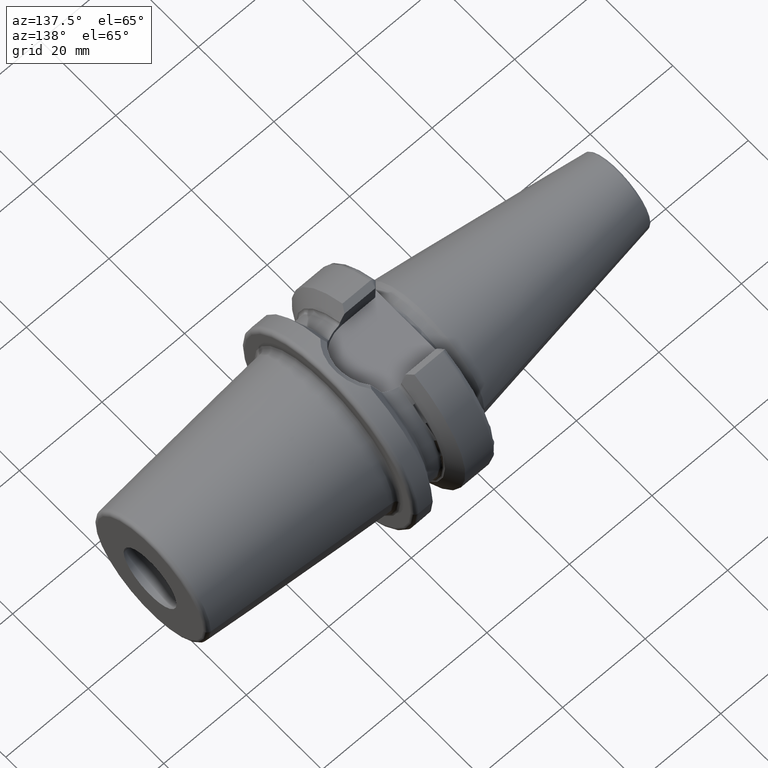
[diagram: clean part render]
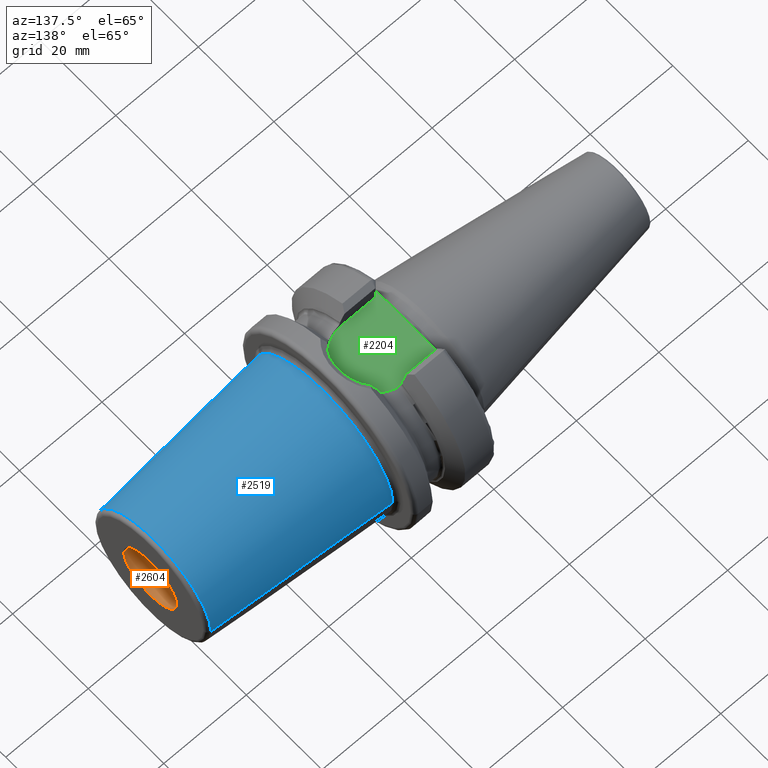
[diagram: same view with three faces highlighted in distinct colors, each labeled with its STEP entity id]
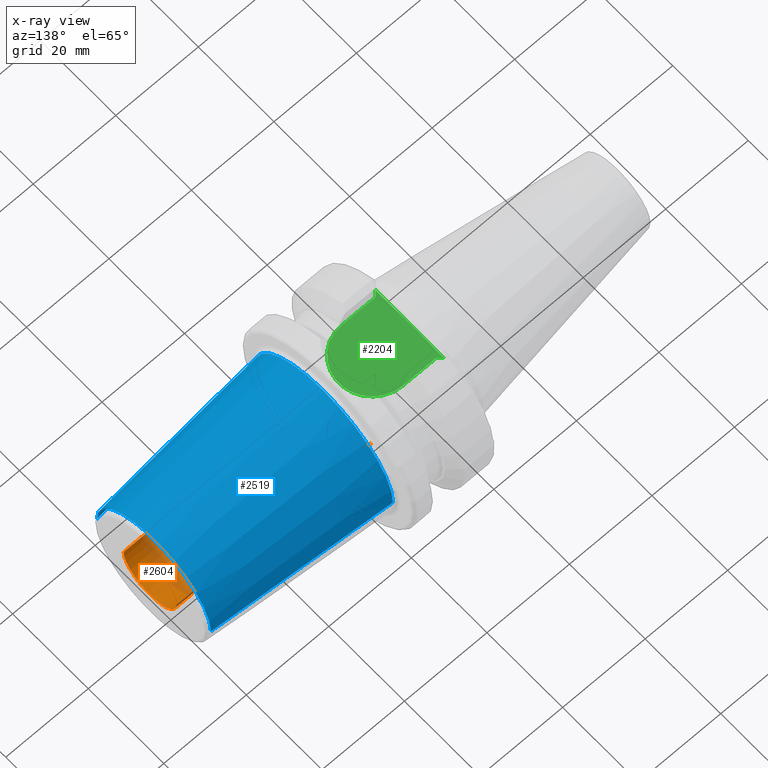
[diagram: x-ray of the same camera — body ghosted, the three highlighted faces saturated]
A machine part, auxiliary view with three faces highlighted in distinct colors.
The next image is the same camera in x-ray (body ghosted, the three faces saturated) — at least one of them is partly hidden behind the body in this view.
Their STEP definitions:

[orange] entity #2604 — the highlighted cylindrical surface (partial cylindrical patch) has radius 7 mm, axis along (-1, 0, 0).
#885=CARTESIAN_POINT('',(6.5E1,0.E0,0.E0));
#886=DIRECTION('',(-1.E0,0.E0,0.E0));
#887=DIRECTION('',(0.E0,1.E0,0.E0));
#888=AXIS2_PLACEMENT_3D('',#885,#886,#887);
#900=DIRECTION('',(-1.E0,0.E0,0.E0));
#901=VECTOR('',#900,4.7E1);
#902=CARTESIAN_POINT('',(6.5E1,-7.E0,0.E0));
#903=LINE('',#902,#901);
#904=DIRECTION('',(-1.E0,0.E0,0.E0));
#905=VECTOR('',#904,4.7E1);
#906=CARTESIAN_POINT('',(6.5E1,7.E0,0.E0));
#907=LINE('',#906,#905);
#913=CARTESIAN_POINT('',(1.8E1,0.E0,0.E0));
#914=DIRECTION('',(-1.E0,0.E0,0.E0));
#915=DIRECTION('',(0.E0,1.E0,0.E0));
#916=AXIS2_PLACEMENT_3D('',#913,#914,#915);
#1357=CARTESIAN_POINT('',(1.8E1,-7.E0,0.E0));
#1358=CARTESIAN_POINT('',(1.8E1,7.E0,0.E0));
#1359=VERTEX_POINT('',#1357);
#1360=VERTEX_POINT('',#1358);
#1361=CARTESIAN_POINT('',(6.5E1,-7.E0,0.E0));
#1362=CARTESIAN_POINT('',(6.5E1,7.E0,0.E0));
#1363=VERTEX_POINT('',#1361);
#1364=VERTEX_POINT('',#1362);
#2592=CARTESIAN_POINT('',(6.5E1,0.E0,0.E0));
#2593=DIRECTION('',(-1.E0,0.E0,0.E0));
#2594=DIRECTION('',(0.E0,-1.E0,0.E0));
#2595=AXIS2_PLACEMENT_3D('',#2592,#2593,#2594);
#2596=CYLINDRICAL_SURFACE('',#2595,7.E0);
#2597=ORIENTED_EDGE('',*,*,#2572,.T.);
#2598=ORIENTED_EDGE('',*,*,#2587,.T.);
#2600=ORIENTED_EDGE('',*,*,#2599,.F.);
#2601=ORIENTED_EDGE('',*,*,#2583,.F.);
#2602=EDGE_LOOP('',(#2597,#2598,#2600,#2601));
#2603=FACE_OUTER_BOUND('',#2602,.F.);
#2604=ADVANCED_FACE('',(#2603),#2596,.F.);
#889=CIRCLE('',#888,7.E0);
#917=CIRCLE('',#916,7.E0);
#2572=EDGE_CURVE('',#1364,#1363,#889,.T.);
#2583=EDGE_CURVE('',#1364,#1360,#907,.T.);
#2587=EDGE_CURVE('',#1363,#1359,#903,.T.);
#2599=EDGE_CURVE('',#1360,#1359,#917,.T.);

[blue] entity #2519 — the highlighted conical surface has half-angle 4.5 deg.
#842=CARTESIAN_POINT('',(6.407845909573E1,0.E0,0.E0));
#843=DIRECTION('',(-1.E0,0.E0,0.E0));
#844=DIRECTION('',(0.E0,-1.E0,0.E0));
#845=AXIS2_PLACEMENT_3D('',#842,#843,#844);
#847=CARTESIAN_POINT('',(2.292154090427E1,0.E0,0.E0));
#848=DIRECTION('',(1.E0,0.E0,0.E0));
#849=DIRECTION('',(0.E0,1.E0,0.E0));
#850=AXIS2_PLACEMENT_3D('',#847,#848,#849);
#867=DIRECTION('',(-9.969173337331E-1,7.845909572785E-2,8.642914696715E-14));
#868=VECTOR('',#867,4.128418355145E1);
#869=CARTESIAN_POINT('',(6.407845909573E1,1.507252684207E1,
-5.666647174642E-13));
#870=LINE('',#869,#868);
#876=DIRECTION('',(-9.969173337331E-1,-7.845909572785E-2,-8.648229572930E-14));
#877=VECTOR('',#876,4.128418355145E1);
#878=CARTESIAN_POINT('',(6.407845909573E1,-1.507252684207E1,
5.662165253099E-13));
#879=LINE('',#878,#877);
#1365=CARTESIAN_POINT('',(6.407845909573E1,1.507252684207E1,0.E0));
#1366=CARTESIAN_POINT('',(6.407845909573E1,-1.507252684207E1,0.E0));
#1367=VERTEX_POINT('',#1365);
#1368=VERTEX_POINT('',#1366);
#1377=CARTESIAN_POINT('',(2.292154090427E1,-1.831164655138E1,0.E0));
#1378=CARTESIAN_POINT('',(2.292154090427E1,1.831164655138E1,0.E0));
#1379=VERTEX_POINT('',#1377);
#1380=VERTEX_POINT('',#1378);
#2505=CARTESIAN_POINT('',(4.35E1,0.E0,0.E0));
#2506=DIRECTION('',(-1.E0,0.E0,0.E0));
#2507=DIRECTION('',(0.E0,1.E0,0.E0));
#2508=AXIS2_PLACEMENT_3D('',#2505,#2506,#2507);
#2509=CONICAL_SURFACE('',#2508,1.669208669673E1,4.5E0);
#2511=ORIENTED_EDGE('',*,*,#2510,.F.);
#2513=ORIENTED_EDGE('',*,*,#2512,.T.);
#2514=ORIENTED_EDGE('',*,*,#2499,.F.);
#2516=ORIENTED_EDGE('',*,*,#2515,.F.);
#2517=EDGE_LOOP('',(#2511,#2513,#2514,#2516));
#2518=FACE_OUTER_BOUND('',#2517,.F.);
#2519=ADVANCED_FACE('',(#2518),#2509,.T.);
#846=CIRCLE('',#845,1.507252684207E1);
#851=CIRCLE('',#850,1.831164655138E1);
#2499=EDGE_CURVE('',#1380,#1379,#851,.T.);
#2510=EDGE_CURVE('',#1368,#1367,#846,.T.);
#2512=EDGE_CURVE('',#1368,#1379,#879,.T.);
#2515=EDGE_CURVE('',#1367,#1380,#870,.T.);

[green] entity #2204 — the highlighted planar face has unit normal (0, 0, 1).
#666=DIRECTION('',(1.E0,0.E0,0.E0));
#667=VECTOR('',#666,8.155E0);
#668=CARTESIAN_POINT('',(3.E0,-8.095E0,1.615E1));
#669=LINE('',#668,#667);
#670=DIRECTION('',(0.E0,1.E0,0.E0));
#671=VECTOR('',#670,6.389796680469E0);
#672=CARTESIAN_POINT('',(2.E0,-9.095E0,1.615E1));
#673=LINE('',#672,#671);
#674=DIRECTION('',(0.E0,1.E0,0.E0));
#675=VECTOR('',#674,6.389796680469E0);
#676=CARTESIAN_POINT('',(2.E0,2.705203319531E0,1.615E1));
#677=LINE('',#676,#675);
#678=DIRECTION('',(-1.E0,0.E0,0.E0));
#679=VECTOR('',#678,8.155E0);
#680=CARTESIAN_POINT('',(1.1155E1,8.095E0,1.615E1));
#681=LINE('',#680,#679);
#682=CARTESIAN_POINT('',(1.1155E1,0.E0,1.615E1));
#683=DIRECTION('',(0.E0,0.E0,1.E0));
#684=DIRECTION('',(0.E0,-1.E0,0.E0));
#685=AXIS2_PLACEMENT_3D('',#682,#683,#684);
#691=DIRECTION('',(7.071067811865E-1,7.071067811865E-1,0.E0));
#692=VECTOR('',#691,1.414213562373E0);
#693=CARTESIAN_POINT('',(2.E0,-9.095E0,1.615E1));
#694=LINE('',#693,#692);
#700=CARTESIAN_POINT('',(2.E0,-2.705203319531E0,1.615E1));
#701=CARTESIAN_POINT('',(2.E0,-2.447526606637E0,1.615E1));
#702=CARTESIAN_POINT('',(1.994666808080E0,-1.932209003238E0,1.615E1));
#703=CARTESIAN_POINT('',(1.982373677751E0,-1.159353659083E0,1.615E1));
#704=CARTESIAN_POINT('',(1.974023153496E0,-3.864772813160E-1,1.615E1));
#705=CARTESIAN_POINT('',(1.974022947076E0,3.864455623798E-1,1.615E1));
#706=CARTESIAN_POINT('',(1.982373315251E0,1.159330607264E0,1.615E1));
#707=CARTESIAN_POINT('',(1.994666672292E0,1.932198796230E0,1.615E1));
#708=CARTESIAN_POINT('',(2.E0,2.447523240700E0,1.615E1));
#709=CARTESIAN_POINT('',(2.E0,2.705203319531E0,1.615E1));
#716=DIRECTION('',(-7.071067811865E-1,7.071067811865E-1,0.E0));
#717=VECTOR('',#716,1.414213562373E0);
#718=CARTESIAN_POINT('',(3.E0,8.095E0,1.615E1));
#719=LINE('',#718,#717);
#1276=CARTESIAN_POINT('',(1.1155E1,-8.095E0,1.615E1));
#1277=CARTESIAN_POINT('',(1.1155E1,8.095E0,1.615E1));
#1278=VERTEX_POINT('',#1276);
#1279=VERTEX_POINT('',#1277);
#1280=CARTESIAN_POINT('',(2.E0,2.705203319531E0,1.615E1));
#1281=VERTEX_POINT('',#1280);
#1282=CARTESIAN_POINT('',(2.E0,-2.705203319531E0,1.615E1));
#1283=VERTEX_POINT('',#1282);
#1313=CARTESIAN_POINT('',(3.E0,-8.095E0,1.615E1));
#1315=VERTEX_POINT('',#1313);
#1317=CARTESIAN_POINT('',(2.E0,-9.095E0,1.615E1));
#1319=VERTEX_POINT('',#1317);
#1326=CARTESIAN_POINT('',(2.E0,9.095E0,1.615E1));
#1327=VERTEX_POINT('',#1326);
#1328=CARTESIAN_POINT('',(3.E0,8.095E0,1.615E1));
#1330=VERTEX_POINT('',#1328);
#2186=CARTESIAN_POINT('',(0.E0,0.E0,1.615E1));
#2187=DIRECTION('',(0.E0,0.E0,1.E0));
#2188=DIRECTION('',(1.E0,0.E0,0.E0));
#2189=AXIS2_PLACEMENT_3D('',#2186,#2187,#2188);
#2190=PLANE('',#2189);
#2191=ORIENTED_EDGE('',*,*,#1957,.F.);
#2193=ORIENTED_EDGE('',*,*,#2192,.F.);
#2194=ORIENTED_EDGE('',*,*,#1563,.T.);
#2196=ORIENTED_EDGE('',*,*,#2195,.T.);
#2197=ORIENTED_EDGE('',*,*,#1541,.T.);
#2199=ORIENTED_EDGE('',*,*,#2198,.F.);
#2200=ORIENTED_EDGE('',*,*,#2178,.F.);
#2201=ORIENTED_EDGE('',*,*,#1926,.F.);
#2202=EDGE_LOOP('',(#2191,#2193,#2194,#2196,#2197,#2199,#2200,#2201));
#2203=FACE_OUTER_BOUND('',#2202,.F.);
#2204=ADVANCED_FACE('',(#2203),#2190,.T.);
#686=CIRCLE('',#685,8.095E0);
#710=B_SPLINE_CURVE_WITH_KNOTS('',3,(#700,#701,#702,#703,#704,#705,#706,#707,
#708,#709),.UNSPECIFIED.,.F.,.F.,(4,1,1,1,1,1,1,4),(0.E0,1.428571428571E-1,
2.857142857143E-1,4.285714285714E-1,5.714285714286E-1,7.142857142857E-1,
8.571428571429E-1,1.E0),.UNSPECIFIED.);
#1541=EDGE_CURVE('',#1281,#1327,#677,.T.);
#1563=EDGE_CURVE('',#1319,#1283,#673,.T.);
#1926=EDGE_CURVE('',#1278,#1279,#686,.T.);
#1957=EDGE_CURVE('',#1315,#1278,#669,.T.);
#2178=EDGE_CURVE('',#1279,#1330,#681,.T.);
#2192=EDGE_CURVE('',#1319,#1315,#694,.T.);
#2195=EDGE_CURVE('',#1283,#1281,#710,.T.);
#2198=EDGE_CURVE('',#1330,#1327,#719,.T.);